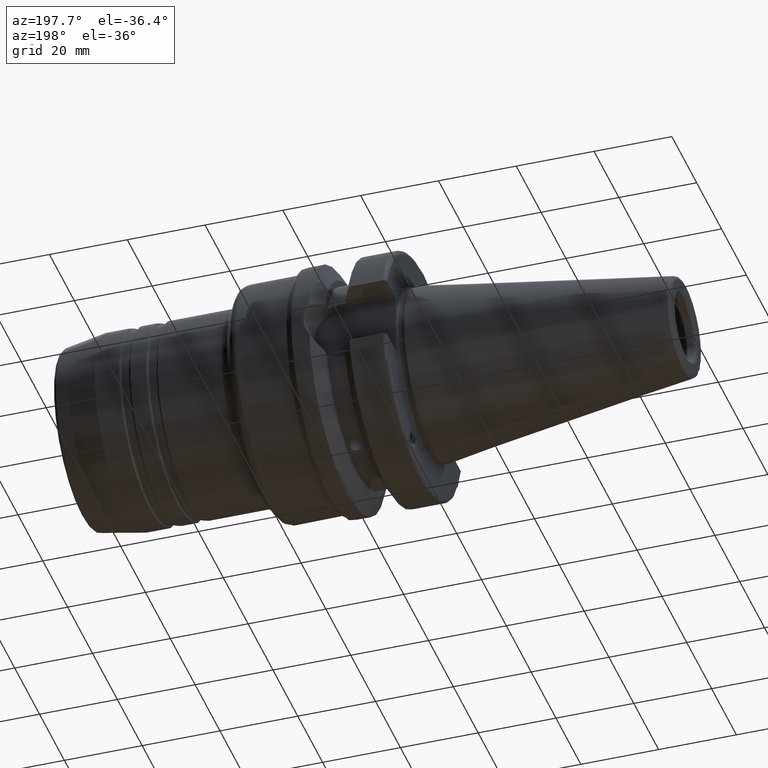
[diagram: clean part render]
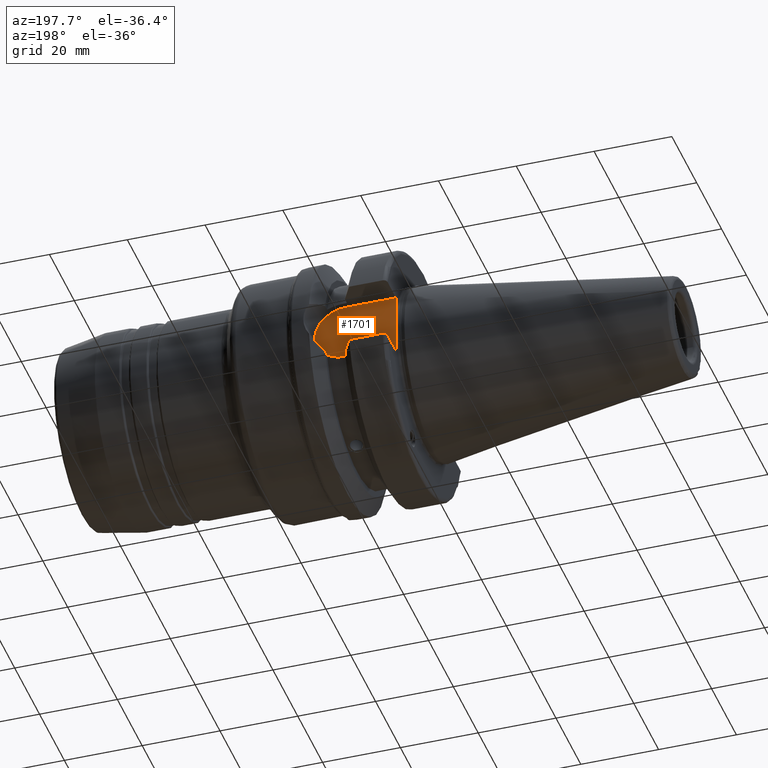
[diagram: same view with one face highlighted and labeled with its STEP entity id]
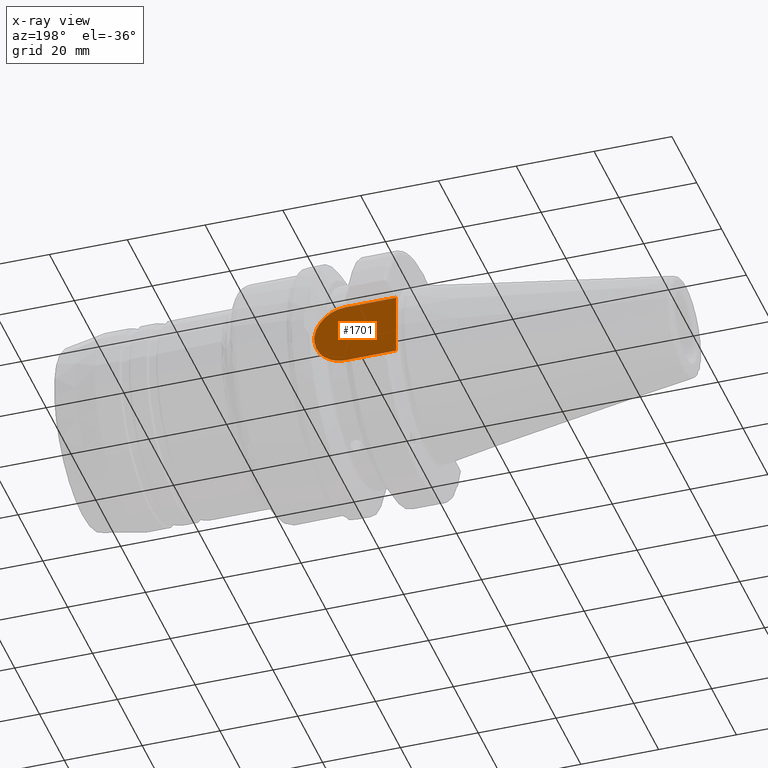
[diagram: x-ray of the same camera — body ghosted, the highlighted face saturated]
A machine part, auxiliary view. The second image highlights one B-rep face of the part: STEP entity #1701.
The next image is the same camera in x-ray: the body ghosted, the highlighted face saturated — about 0% of this face is hidden behind the body in this view.
In plain terms, the highlighted planar face has unit normal (0, 1, 0).
Its self-contained STEP definition (entity closure, byte-faithful):
#51=PLANE('',#1943);
#200=FACE_OUTER_BOUND('',#299,.T.);
#299=EDGE_LOOP('',(#1479,#1480,#1481,#1482));
#383=LINE('',#3254,#453);
#388=LINE('',#3278,#458);
#389=LINE('',#3280,#459);
#453=VECTOR('',#2459,10.);
#458=VECTOR('',#2466,10.);
#459=VECTOR('',#2469,10.);
#580=CIRCLE('',#1940,8.05);
#765=VERTEX_POINT('',#3229);
#766=VERTEX_POINT('',#3231);
#771=VERTEX_POINT('',#3253);
#776=VERTEX_POINT('',#3276);
#1011=EDGE_CURVE('',#766,#765,#580,.T.);
#1017=EDGE_CURVE('',#771,#766,#383,.T.);
#1024=EDGE_CURVE('',#765,#776,#388,.T.);
#1025=EDGE_CURVE('',#771,#776,#389,.T.);
#1479=ORIENTED_EDGE('',*,*,#1024,.T.);
#1480=ORIENTED_EDGE('',*,*,#1025,.F.);
#1481=ORIENTED_EDGE('',*,*,#1017,.T.);
#1482=ORIENTED_EDGE('',*,*,#1011,.T.);
#1701=ADVANCED_FACE('',(#200),#51,.T.);
#1940=AXIS2_PLACEMENT_3D('',#3232,#2452,#2453);
#1943=AXIS2_PLACEMENT_3D('',#3279,#2467,#2468);
#2452=DIRECTION('center_axis',(0.,1.,0.));
#2453=DIRECTION('ref_axis',(0.,0.,1.));
#2459=DIRECTION('',(1.,0.,8.57315076930623E-17));
#2466=DIRECTION('',(-1.,0.,-8.57315076930623E-17));
#2467=DIRECTION('center_axis',(0.,1.,0.));
#2468=DIRECTION('ref_axis',(0.,0.,1.));
#2469=DIRECTION('',(0.,0.,-1.));
#3229=CARTESIAN_POINT('',(14.95,22.6,-8.05));
#3231=CARTESIAN_POINT('',(14.95,22.6,8.05));
#3232=CARTESIAN_POINT('Origin',(14.95,22.6,0.));
#3253=CARTESIAN_POINT('',(1.99999999999999,22.6,8.05));
#3254=CARTESIAN_POINT('',(1.99999999999999,22.6,8.05));
#3276=CARTESIAN_POINT('',(1.99999999999999,22.6,-8.05));
#3278=CARTESIAN_POINT('',(14.95,22.6,-8.05));
#3279=CARTESIAN_POINT('Origin',(12.5,22.6,0.));
#3280=CARTESIAN_POINT('',(1.99999999999999,22.6,0.));